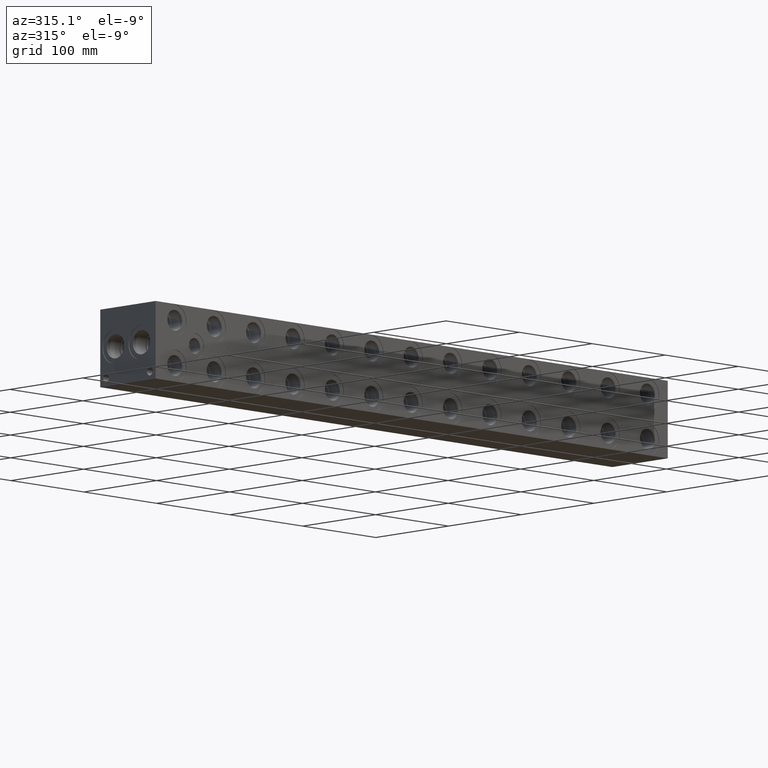
[diagram: clean part render]
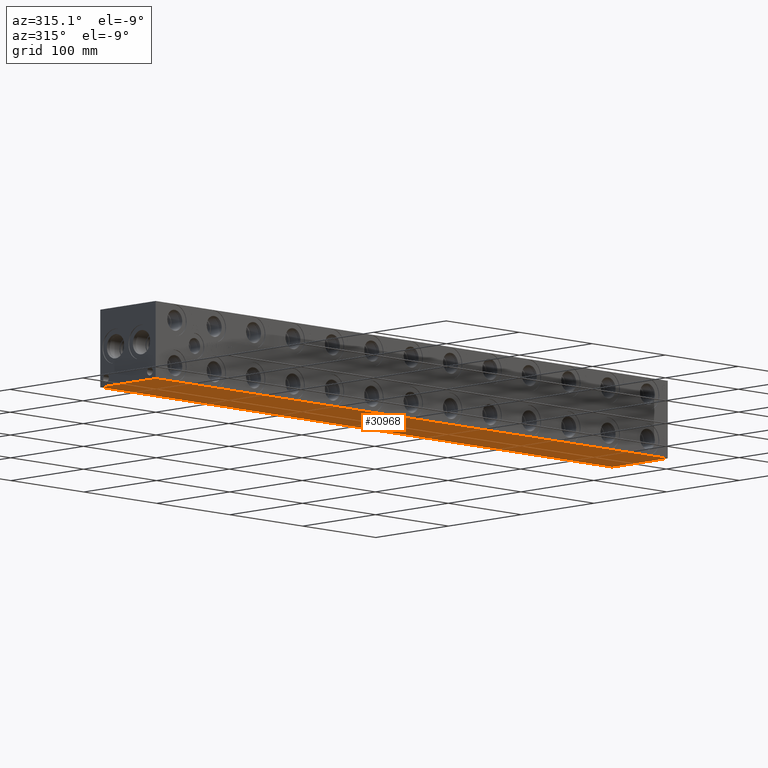
[diagram: same view with one face highlighted and labeled with its STEP entity id]
A machine part, auxiliary view. The second image highlights one B-rep face of the part: STEP entity #30968.
In plain terms, the highlighted planar face has unit normal (0, 0, 1).
Its self-contained STEP definition (entity closure, byte-faithful):
#4784=FACE_OUTER_BOUND('',#6785,.T.);
#6785=EDGE_LOOP('',(#27717,#27718,#27719,#27720));
#6819=LINE('',#41199,#9270);
#7258=LINE('',#43404,#9709);
#7317=LINE('',#43676,#9768);
#9235=LINE('',#54223,#11686);
#9270=VECTOR('',#33608,10.);
#9709=VECTOR('',#34219,10.);
#9768=VECTOR('',#34332,10.);
#11686=VECTOR('',#41118,10.);
#11710=VERTEX_POINT('',#41197);
#11711=VERTEX_POINT('',#41198);
#12367=VERTEX_POINT('',#43403);
#12425=VERTEX_POINT('',#43675);
#14782=EDGE_CURVE('',#11710,#11711,#6819,.T.);
#15487=EDGE_CURVE('',#11711,#12367,#7258,.T.);
#15570=EDGE_CURVE('',#12425,#11710,#7317,.T.);
#19071=EDGE_CURVE('',#12367,#12425,#9235,.T.);
#27717=ORIENTED_EDGE('',*,*,#14782,.F.);
#27718=ORIENTED_EDGE('',*,*,#15570,.F.);
#27719=ORIENTED_EDGE('',*,*,#19071,.F.);
#27720=ORIENTED_EDGE('',*,*,#15487,.F.);
#28456=PLANE('',#33546);
#30968=ADVANCED_FACE('',(#4784),#28456,.F.);
#33546=AXIS2_PLACEMENT_3D('',#54228,#41126,#41127);
#33608=DIRECTION('',(1.,0.,0.));
#34219=DIRECTION('',(0.,1.,0.));
#34332=DIRECTION('',(0.,-1.,0.));
#41118=DIRECTION('',(-1.,0.,0.));
#41126=DIRECTION('center_axis',(0.,0.,1.));
#41127=DIRECTION('ref_axis',(1.,0.,0.));
#41197=CARTESIAN_POINT('',(0.,0.,0.));
#41198=CARTESIAN_POINT('',(701.675,0.,0.));
#41199=CARTESIAN_POINT('',(0.,0.,0.));
#43403=CARTESIAN_POINT('',(701.675,76.2,0.));
#43404=CARTESIAN_POINT('',(701.675,0.,0.));
#43675=CARTESIAN_POINT('',(0.,76.2,0.));
#43676=CARTESIAN_POINT('',(0.,76.2,0.));
#54223=CARTESIAN_POINT('',(701.675,76.2,0.));
#54228=CARTESIAN_POINT('Origin',(350.8375,38.1,0.));